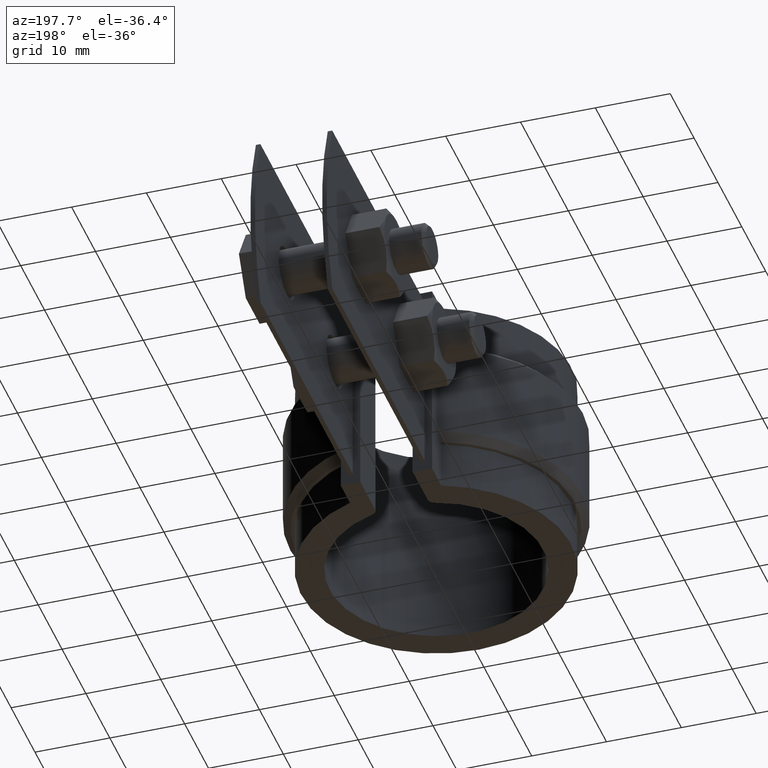
[diagram: clean part render]
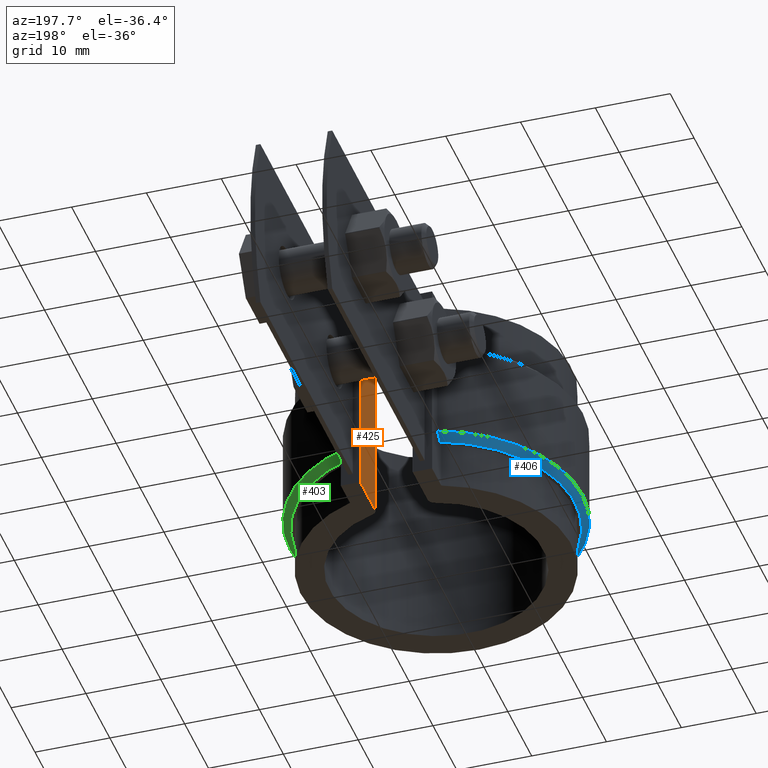
[diagram: same view with three faces highlighted in distinct colors, each labeled with its STEP entity id]
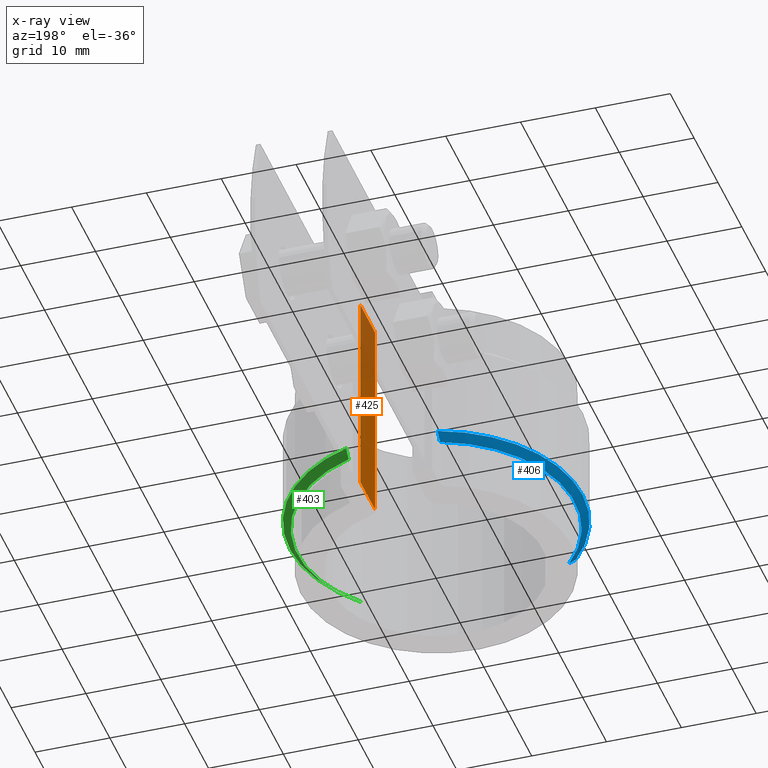
[diagram: x-ray of the same camera — body ghosted, the three highlighted faces saturated]
A machine part, auxiliary view with three faces highlighted in distinct colors.
The next image is the same camera in x-ray (body ghosted, the three faces saturated) — at least one of them is partly hidden behind the body in this view.
Their STEP definitions:

[orange] entity #425 — the highlighted planar face has unit normal (-1, 0, 0).
#425 = ADVANCED_FACE( '', ( #735 ), #736, .T. );
#735 = FACE_OUTER_BOUND( '', #1577, .T. );
#736 = PLANE( '', #1578 );
#1577 = EDGE_LOOP( '', ( #3756, #3757, #3758, #3759 ) );
#1578 = AXIS2_PLACEMENT_3D( '', #3760, #3761, #3762 );
#3756 = ORIENTED_EDGE( '', *, *, #4603, .F. );
#3757 = ORIENTED_EDGE( '', *, *, #4656, .T. );
#3758 = ORIENTED_EDGE( '', *, *, #4458, .T. );
#3759 = ORIENTED_EDGE( '', *, *, #4655, .T. );
#3760 = CARTESIAN_POINT( '', ( 3.50000000000000, 21.4700000000000, -26.5000000000000 ) );
#3761 = DIRECTION( '', ( -1.00000000000000, 6.28837260041593E-017, 0.000000000000000 ) );
#3762 = DIRECTION( '', ( 6.28837260041593E-017, 1.00000000000000, 0.000000000000000 ) );
#4458 = EDGE_CURVE( '', #5053, #5051, #5054, .T. );
#4603 = EDGE_CURVE( '', #5299, #5301, #5302, .T. );
#4655 = EDGE_CURVE( '', #5051, #5301, #5379, .T. );
#4656 = EDGE_CURVE( '', #5299, #5053, #5380, .T. );
#5051 = VERTEX_POINT( '', #6604 );
#5053 = VERTEX_POINT( '', #6606 );
#5054 = LINE( '', #6607, #6608 );
#5299 = VERTEX_POINT( '', #7598 );
#5301 = VERTEX_POINT( '', #7601 );
#5302 = LINE( '', #7602, #7603 );
#5379 = LINE( '', #7721, #7722 );
#5380 = LINE( '', #7723, #7724 );
#6604 = CARTESIAN_POINT( '', ( 3.50000000000000, 14.6128060275910, -26.5000000000000 ) );
#6606 = CARTESIAN_POINT( '', ( 3.50000000000000, 20.8219465658190, -26.5000000000000 ) );
#6607 = CARTESIAN_POINT( '', ( 3.50000000000000, 21.4700000000000, -26.5000000000000 ) );
#6608 = VECTOR( '', #8338, 1000.00000000000 );
#7598 = CARTESIAN_POINT( '', ( 3.50000000000000, 20.8219465658190, 1.50000000000000 ) );
#7601 = CARTESIAN_POINT( '', ( 3.50000000000000, 14.6128060275910, 1.50000000000000 ) );
#7602 = CARTESIAN_POINT( '', ( 3.50000000000000, 21.4700000000000, 1.50000000000000 ) );
#7603 = VECTOR( '', #8485, 1000.00000000000 );
#7721 = CARTESIAN_POINT( '', ( 3.50000000000000, 14.6128060275910, -26.5000000000000 ) );
#7722 = VECTOR( '', #8575, 1000.00000000000 );
#7723 = CARTESIAN_POINT( '', ( 3.50000000000000, 20.8219465658190, -26.5000000000000 ) );
#7724 = VECTOR( '', #8576, 1000.00000000000 );
#8338 = DIRECTION( '', ( -6.28837260041593E-017, -1.00000000000000, 0.000000000000000 ) );
#8485 = DIRECTION( '', ( -6.28837260041593E-017, -1.00000000000000, 0.000000000000000 ) );
#8575 = DIRECTION( '', ( 0.000000000000000, 0.000000000000000, 1.00000000000000 ) );
#8576 = DIRECTION( '', ( 0.000000000000000, 0.000000000000000, -1.00000000000000 ) );

[blue] entity #406 — the highlighted conical surface has half-angle 45 deg.
#406 = ADVANCED_FACE( '', ( #697 ), #698, .T. );
#697 = FACE_OUTER_BOUND( '', #1539, .T. );
#698 = CONICAL_SURFACE( '', #1540, 19.5350000000000, 0.785398163397450 );
#1539 = EDGE_LOOP( '', ( #3615, #3616, #3617, #3618 ) );
#1540 = AXIS2_PLACEMENT_3D( '', #3619, #3620, #3621 );
#3615 = ORIENTED_EDGE( '', *, *, #4465, .F. );
#3616 = ORIENTED_EDGE( '', *, *, #4641, .F. );
#3617 = ORIENTED_EDGE( '', *, *, #4638, .F. );
#3618 = ORIENTED_EDGE( '', *, *, #4628, .F. );
#3619 = CARTESIAN_POINT( '', ( -8.67361737988404E-016, 0.000000000000000, -19.0000000000000 ) );
#3620 = DIRECTION( '', ( 0.000000000000000, 0.000000000000000, 1.00000000000000 ) );
#3621 = DIRECTION( '', ( 1.00000000000000, 0.000000000000000, 0.000000000000000 ) );
#4465 = EDGE_CURVE( '', #5064, #5066, #5067, .T. );
#4628 = EDGE_CURVE( '', #5066, #5342, #5346, .T. );
#4638 = EDGE_CURVE( '', #5342, #5360, #5361, .T. );
#4641 = EDGE_CURVE( '', #5360, #5064, #5364, .F. );
#5064 = VERTEX_POINT( '', #6622 );
#5066 = VERTEX_POINT( '', #6625 );
#5067 = B_SPLINE_CURVE_WITH_KNOTS( '', 3, ( #6626, #6627, #6628, #6629 ), .UNSPECIFIED., .F., .F., ( 4, 4 ), ( 0.000000000000000, 0.00145414847532091 ), .UNSPECIFIED. );
#5342 = VERTEX_POINT( '', #7670 );
#5346 = CIRCLE( '', #7675, 19.5350000000000 );
#5360 = VERTEX_POINT( '', #7692 );
#5361 = LINE( '', #7693, #7694 );
#5364 = CIRCLE( '', #7697, 18.5350000000000 );
#6622 = CARTESIAN_POINT( '', ( -6.10000000000003, 17.5024633980477, -20.0000000000000 ) );
#6625 = CARTESIAN_POINT( '', ( -6.10000000000003, 18.5581848519730, -19.0000000000000 ) );
#6626 = CARTESIAN_POINT( '', ( -6.10000000000003, 17.5024633980477, -20.0000000000000 ) );
#6627 = CARTESIAN_POINT( '', ( -6.10000000000003, 17.8548851318032, -19.6672107636508 ) );
#6628 = CARTESIAN_POINT( '', ( -6.10000000000003, 18.2067653264390, -19.3338473772947 ) );
#6629 = CARTESIAN_POINT( '', ( -6.10000000000003, 18.5581848519730, -19.0000000000000 ) );
#7670 = CARTESIAN_POINT( '', ( -14.5540076052262, -13.0306211527700, -19.0000000000000 ) );
#7675 = AXIS2_PLACEMENT_3D( '', #8520, #8521, #8522 );
#7692 = CARTESIAN_POINT( '', ( -13.8089854600905, -12.3635814213766, -20.0000000000000 ) );
#7693 = CARTESIAN_POINT( '', ( -14.5540076052262, -13.0306211527700, -19.0000000000000 ) );
#7694 = VECTOR( '', #8544, 1000.00000000000 );
#7697 = AXIS2_PLACEMENT_3D( '', #8551, #8552, #8553 );
#8520 = CARTESIAN_POINT( '', ( -8.67361737988404E-016, 0.000000000000000, -19.0000000000000 ) );
#8521 = DIRECTION( '', ( 0.000000000000000, 0.000000000000000, 1.00000000000000 ) );
#8522 = DIRECTION( '', ( 1.00000000000000, 0.000000000000000, 0.000000000000000 ) );
#8544 = DIRECTION( '', ( 0.526810210959616, 0.471668317389124, -0.707106781186546 ) );
#8551 = CARTESIAN_POINT( '', ( -8.67361737988404E-016, 0.000000000000000, -20.0000000000000 ) );
#8552 = DIRECTION( '', ( 0.000000000000000, 0.000000000000000, 1.00000000000000 ) );
#8553 = DIRECTION( '', ( 1.00000000000000, 0.000000000000000, 0.000000000000000 ) );

[green] entity #403 — the highlighted conical surface has half-angle 45 deg.
#403 = ADVANCED_FACE( '', ( #691 ), #692, .T. );
#691 = FACE_OUTER_BOUND( '', #1533, .T. );
#692 = CONICAL_SURFACE( '', #1534, 18.5350000000000, 0.785398163397447 );
#1533 = EDGE_LOOP( '', ( #3594, #3595, #3596, #3597 ) );
#1534 = AXIS2_PLACEMENT_3D( '', #3598, #3599, #3600 );
#3594 = ORIENTED_EDGE( '', *, *, #4613, .F. );
#3595 = ORIENTED_EDGE( '', *, *, #4633, .F. );
#3596 = ORIENTED_EDGE( '', *, *, #4634, .F. );
#3597 = ORIENTED_EDGE( '', *, *, #4635, .F. );
#3598 = CARTESIAN_POINT( '', ( 8.67361737988404E-016, 0.000000000000000, -20.0000000000000 ) );
#3599 = DIRECTION( '', ( 0.000000000000000, 0.000000000000000, 1.00000000000000 ) );
#3600 = DIRECTION( '', ( 1.00000000000000, 0.000000000000000, 0.000000000000000 ) );
#4613 = EDGE_CURVE( '', #5317, #5319, #5320, .T. );
#4633 = EDGE_CURVE( '', #5353, #5317, #5354, .T. );
#4634 = EDGE_CURVE( '', #5355, #5353, #5356, .T. );
#4635 = EDGE_CURVE( '', #5319, #5355, #5357, .F. );
#5317 = VERTEX_POINT( '', #7625 );
#5319 = VERTEX_POINT( '', #7628 );
#5320 = B_SPLINE_CURVE_WITH_KNOTS( '', 3, ( #7629, #7630, #7631, #7632 ), .UNSPECIFIED., .F., .F., ( 4, 4 ), ( 3.46944695195361E-018, 0.00145414847532090 ), .UNSPECIFIED. );
#5353 = VERTEX_POINT( '', #7684 );
#5354 = CIRCLE( '', #7685, 19.5350000000000 );
#5355 = VERTEX_POINT( '', #7686 );
#5356 = LINE( '', #7687, #7688 );
#5357 = CIRCLE( '', #7689, 18.5350000000000 );
#7625 = CARTESIAN_POINT( '', ( 6.09999999999998, 18.5581848519730, -19.0000000000000 ) );
#7628 = CARTESIAN_POINT( '', ( 6.09999999999998, 17.5024633980477, -20.0000000000000 ) );
#7629 = CARTESIAN_POINT( '', ( 6.09999999999998, 18.5581848519730, -19.0000000000000 ) );
#7630 = CARTESIAN_POINT( '', ( 6.09999999999998, 18.2067653264390, -19.3338473772947 ) );
#7631 = CARTESIAN_POINT( '', ( 6.09999999999998, 17.8548851318032, -19.6672107636508 ) );
#7632 = CARTESIAN_POINT( '', ( 6.09999999999998, 17.5024633980477, -20.0000000000000 ) );
#7684 = CARTESIAN_POINT( '', ( 14.5540076052262, -13.0306211527700, -19.0000000000000 ) );
#7685 = AXIS2_PLACEMENT_3D( '', #8531, #8532, #8533 );
#7686 = CARTESIAN_POINT( '', ( 13.8089854600905, -12.3635814213766, -20.0000000000000 ) );
#7687 = CARTESIAN_POINT( '', ( 13.8089854600905, -12.3635814213766, -20.0000000000000 ) );
#7688 = VECTOR( '', #8534, 1000.00000000000 );
#7689 = AXIS2_PLACEMENT_3D( '', #8535, #8536, #8537 );
#8531 = CARTESIAN_POINT( '', ( 8.67361737988404E-016, 0.000000000000000, -19.0000000000000 ) );
#8532 = DIRECTION( '', ( 0.000000000000000, 0.000000000000000, 1.00000000000000 ) );
#8533 = DIRECTION( '', ( 1.00000000000000, 0.000000000000000, 0.000000000000000 ) );
#8534 = DIRECTION( '', ( 0.526810210959614, -0.471668317389122, 0.707106781186549 ) );
#8535 = CARTESIAN_POINT( '', ( 8.67361737988404E-016, 0.000000000000000, -20.0000000000000 ) );
#8536 = DIRECTION( '', ( 0.000000000000000, 0.000000000000000, 1.00000000000000 ) );
#8537 = DIRECTION( '', ( 1.00000000000000, 0.000000000000000, 0.000000000000000 ) );